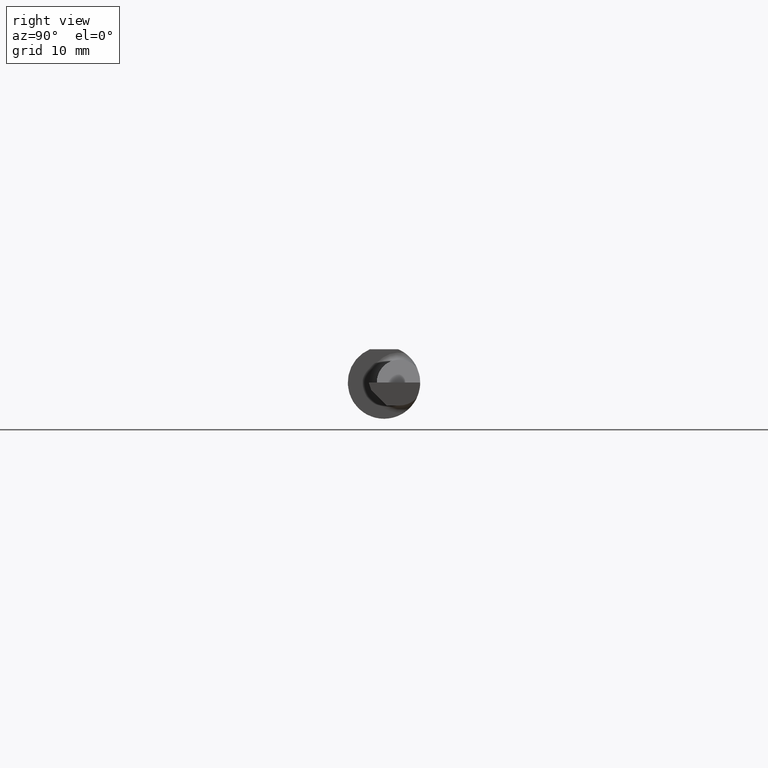
[diagram: clean part render]
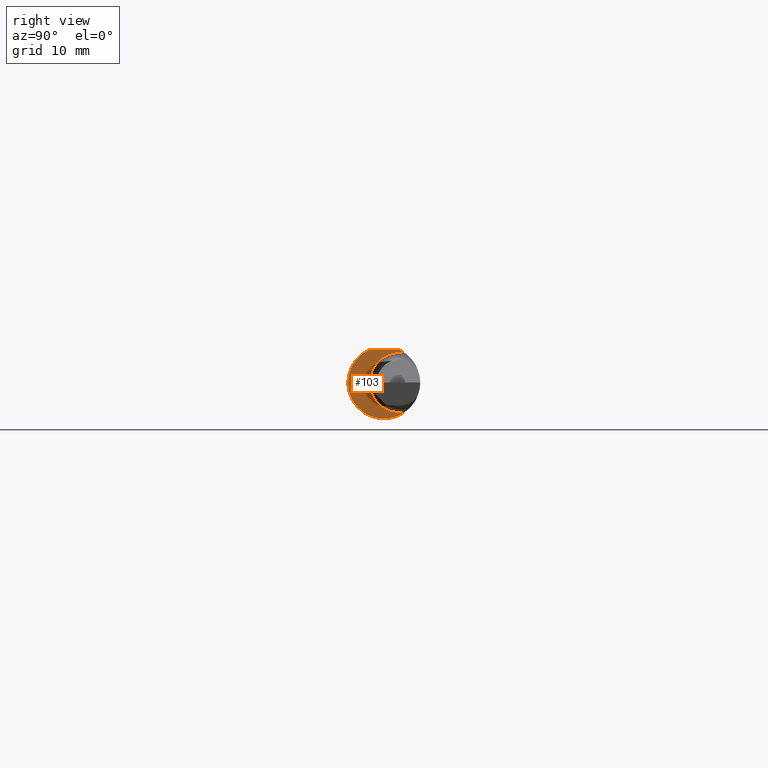
[diagram: same view with one face highlighted and labeled with its STEP entity id]
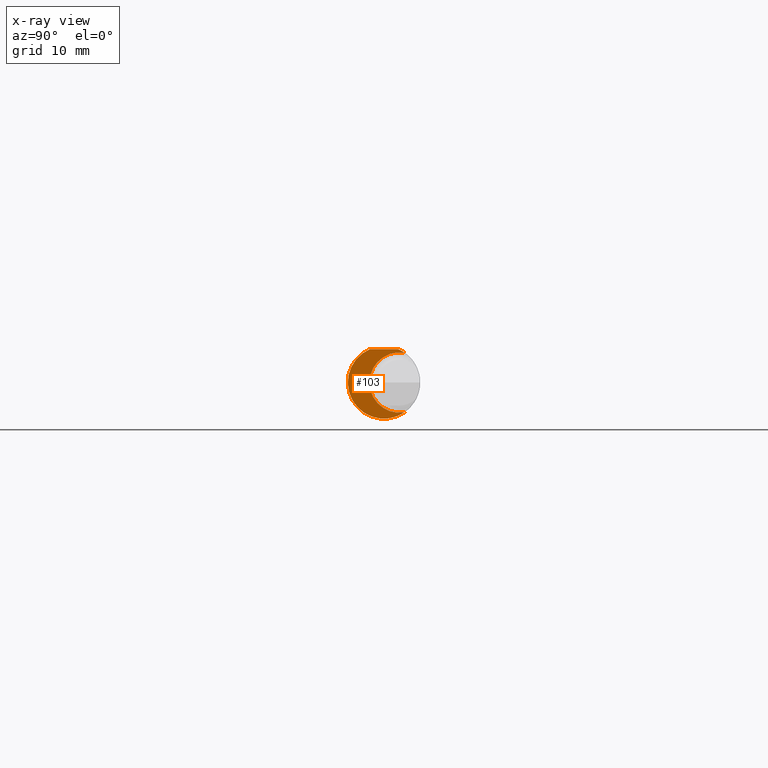
[diagram: x-ray of the same camera — body ghosted, the highlighted face saturated]
A machine part, right view. The second image highlights one B-rep face of the part: STEP entity #103.
The next image is the same camera in x-ray: the body ghosted, the highlighted face saturated — about 0% of this face is hidden behind the body in this view.
In plain terms, the highlighted planar face has unit normal (-1, 0, 0).
Its self-contained STEP definition (entity closure, byte-faithful):
#14 = DIRECTION ( 'NONE',  ( -1.000000000000000000, 3.414809992080329023E-18, -0.000000000000000000 ) ) ;
#33 = CARTESIAN_POINT ( 'NONE',  ( 1.360000000000000320, 0.05399999999999999245, 0.000000000000000000 ) ) ;
#58 = AXIS2_PLACEMENT_3D ( 'NONE', #396, #613, #676 ) ;
#61 = EDGE_CURVE ( 'NONE', #130, #681, #597, .T. ) ;
#82 = FACE_OUTER_BOUND ( 'NONE', #444, .T. ) ;
#94 = CIRCLE ( 'NONE', #183, 0.1041500000000001036 ) ;
#103 = ADVANCED_FACE ( 'NONE', ( #82 ), #297, .F. ) ;
#130 = VERTEX_POINT ( 'NONE', #371 ) ;
#137 = EDGE_CURVE ( 'NONE', #653, #130, #478, .T. ) ;
#138 = ORIENTED_EDGE ( 'NONE', *, *, #509, .T. ) ;
#161 = DIRECTION ( 'NONE',  ( -3.414809992080329023E-18, -1.000000000000000000, 0.000000000000000000 ) ) ;
#167 = CARTESIAN_POINT ( 'NONE',  ( 1.360000000000000320, 0.000000000000000000, 0.000000000000000000 ) ) ;
#170 = DIRECTION ( 'NONE',  ( 0.000000000000000000, -1.000000000000000000, 0.000000000000000000 ) ) ;
#183 = AXIS2_PLACEMENT_3D ( 'NONE', #33, #358, #305 ) ;
#217 = DIRECTION ( 'NONE',  ( 3.414809992080329023E-18, 1.000000000000000000, -4.882484975808304553E-17 ) ) ;
#224 = VERTEX_POINT ( 'NONE', #321 ) ;
#252 = ORIENTED_EDGE ( 'NONE', *, *, #403, .T. ) ;
#257 = CARTESIAN_POINT ( 'NONE',  ( 1.360000000000000320, 0.1748500000000000054, 0.1148500000000000076 ) ) ;
#260 = CARTESIAN_POINT ( 'NONE',  ( 1.360000000000000320, -0.05015000000000010422, 0.000000000000000000 ) ) ;
#278 = VECTOR ( 'NONE', #217, 39.37007874015748143 ) ;
#282 = ORIENTED_EDGE ( 'NONE', *, *, #137, .F. ) ;
#297 = PLANE ( 'NONE',  #439 ) ;
#305 = DIRECTION ( 'NONE',  ( 0.000000000000000000, -1.000000000000000000, 0.000000000000000000 ) ) ;
#309 = CARTESIAN_POINT ( 'NONE',  ( 1.360000000000000320, -0.04895916665957464331, 0.1148500000000000215 ) ) ;
#321 = CARTESIAN_POINT ( 'NONE',  ( 1.360000000000000320, -0.05015000000000011116, 0.000000000000000000 ) ) ;
#337 = EDGE_CURVE ( 'NONE', #340, #653, #685, .T. ) ;
#340 = VERTEX_POINT ( 'NONE', #593 ) ;
#358 = DIRECTION ( 'NONE',  ( -1.000000000000000000, 3.414809992080329023E-18, -0.000000000000000000 ) ) ;
#371 = CARTESIAN_POINT ( 'NONE',  ( 1.360000000000000320, 0.04895916665957456004, 0.1148500000000000076 ) ) ;
#376 = AXIS2_PLACEMENT_3D ( 'NONE', #167, #604, #377 ) ;
#377 = DIRECTION ( 'NONE',  ( 0.000000000000000000, -1.000000000000000000, 0.000000000000000000 ) ) ;
#396 = CARTESIAN_POINT ( 'NONE',  ( 1.360000000000000320, 0.000000000000000000, 0.000000000000000000 ) ) ;
#403 = EDGE_CURVE ( 'NONE', #340, #224, #523, .T. ) ;
#439 = AXIS2_PLACEMENT_3D ( 'NONE', #260, #520, #161 ) ;
#444 = EDGE_LOOP ( 'NONE', ( #252, #138, #505, #282, #455 ) ) ;
#455 = ORIENTED_EDGE ( 'NONE', *, *, #337, .F. ) ;
#478 = LINE ( 'NONE', #257, #278 ) ;
#505 = ORIENTED_EDGE ( 'NONE', *, *, #61, .F. ) ;
#509 = EDGE_CURVE ( 'NONE', #224, #681, #94, .T. ) ;
#520 = DIRECTION ( 'NONE',  ( -1.000000000000000000, 3.414809992080329023E-18, 0.000000000000000000 ) ) ;
#523 = CIRCLE ( 'NONE', #616, 0.1041500000000001036 ) ;
#546 = CARTESIAN_POINT ( 'NONE',  ( 1.360000000000000320, 0.05399999999999999245, 0.000000000000000000 ) ) ;
#593 = CARTESIAN_POINT ( 'NONE',  ( 1.360000000000000320, 0.07089166666666647798, -0.1027710761704004605 ) ) ;
#597 = CIRCLE ( 'NONE', #58, 0.1248500000000000026 ) ;
#604 = DIRECTION ( 'NONE',  ( -1.000000000000000000, 3.414809992080329023E-18, -0.000000000000000000 ) ) ;
#613 = DIRECTION ( 'NONE',  ( -1.000000000000000000, 3.414809992080329023E-18, -0.000000000000000000 ) ) ;
#616 = AXIS2_PLACEMENT_3D ( 'NONE', #546, #14, #170 ) ;
#653 = VERTEX_POINT ( 'NONE', #309 ) ;
#676 = DIRECTION ( 'NONE',  ( 0.000000000000000000, -1.000000000000000000, 0.000000000000000000 ) ) ;
#681 = VERTEX_POINT ( 'NONE', #689 ) ;
#685 = CIRCLE ( 'NONE', #376, 0.1248500000000000026 ) ;
#689 = CARTESIAN_POINT ( 'NONE',  ( 1.360000000000000320, 0.07089166666666647798, 0.1027710761704004605 ) ) ;